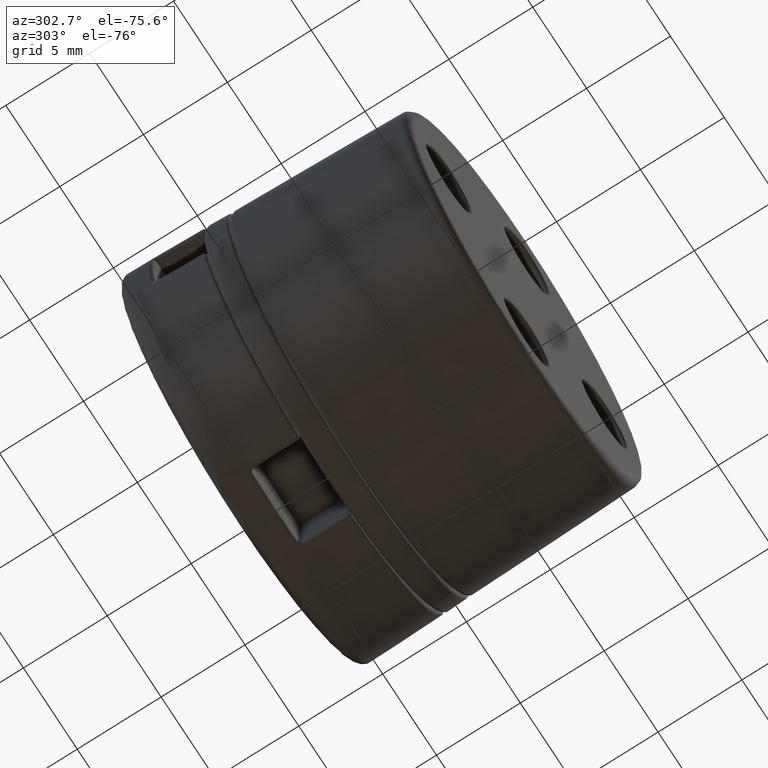
[diagram: clean part render]
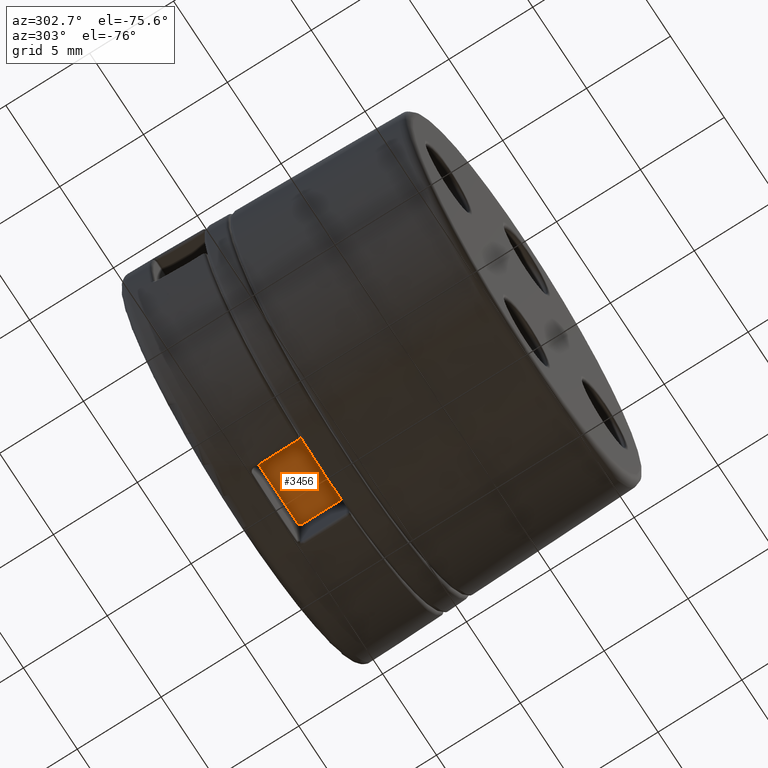
[diagram: same view with one face highlighted and labeled with its STEP entity id]
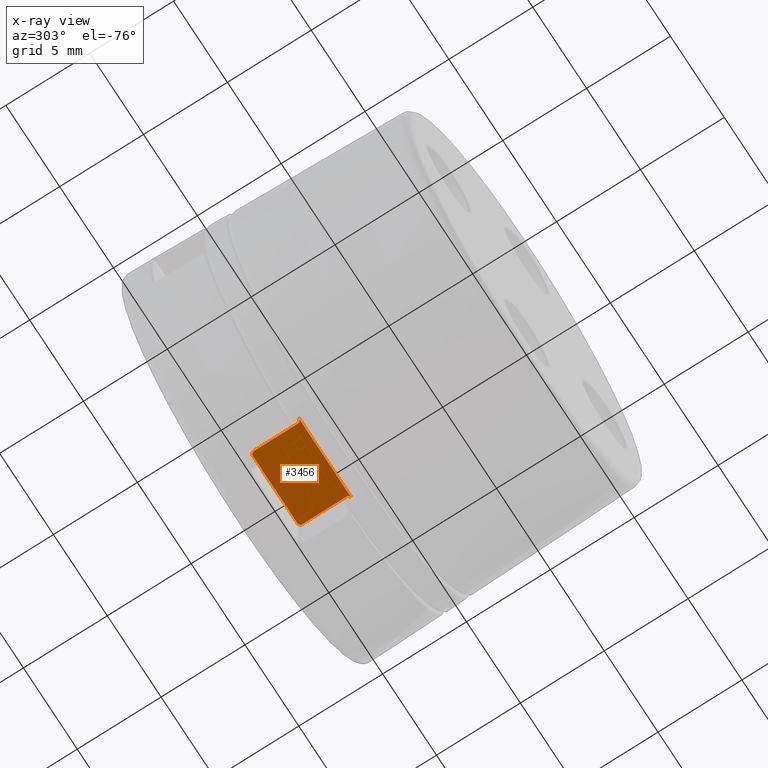
[diagram: x-ray of the same camera — body ghosted, the highlighted face saturated]
A machine part, auxiliary view. The second image highlights one B-rep face of the part: STEP entity #3456.
The next image is the same camera in x-ray: the body ghosted, the highlighted face saturated — about 0% of this face is hidden behind the body in this view.
In plain terms, the highlighted planar face has unit normal (0, -0, 1).
Its self-contained STEP definition (entity closure, byte-faithful):
#173 = VERTEX_POINT ( 'NONE', #2952 ) ;
#181 = VERTEX_POINT ( 'NONE', #2966 ) ;
#190 = VERTEX_POINT ( 'NONE', #2550 ) ;
#201 = VERTEX_POINT ( 'NONE', #2559 ) ;
#204 = VERTEX_POINT ( 'NONE', #2519 ) ;
#205 = VERTEX_POINT ( 'NONE', #2557 ) ;
#598 = CARTESIAN_POINT ( 'NONE',  ( 2.249999999999946300, 14.80000000000000200, -7.611458908937312800 ) ) ;
#747 = CARTESIAN_POINT ( 'NONE',  ( -2.250000000000053700, 12.20000000000000500, -7.611458908937281700 ) ) ;
#1163 = DIRECTION ( 'NONE',  ( 1.000000000000000000, 0.0000000000000000000, -6.938893903907230000E-015 ) ) ;
#1180 = DIRECTION ( 'NONE',  ( 6.938893903907230000E-015, -0.0000000000000000000, 1.000000000000000000 ) ) ;
#1187 = PLANE ( 'NONE',  #1578 ) ;
#1191 = FACE_OUTER_BOUND ( 'NONE', #4268, .T. ) ;
#1215 = CARTESIAN_POINT ( 'NONE',  ( -5.315053348385177900E-014, 15.00000000000000400, -7.611458908937297700 ) ) ;
#1399 = LINE ( 'NONE', #1400, #2095 ) ;
#1400 = CARTESIAN_POINT ( 'NONE',  ( -5.315053348385177900E-014, 15.00000000000000400, -7.611458908937297700 ) ) ;
#1412 = DIRECTION ( 'NONE',  ( -1.000000000000000000, 0.0000000000000000000, 6.938893903907227600E-015 ) ) ;
#1578 = AXIS2_PLACEMENT_3D ( 'NONE', #1215, #1180, #1163 ) ;
#1636 = DIRECTION ( 'NONE',  ( -6.938893903907230000E-015, 0.0000000000000000000, -1.000000000000000000 ) ) ;
#1637 = CARTESIAN_POINT ( 'NONE',  ( -2.250000000000053700, 15.00000000000000400, -7.611458908937281700 ) ) ;
#1639 = LINE ( 'NONE', #1637, #2063 ) ;
#1640 = DIRECTION ( 'NONE',  ( 1.000000000000000000, 0.0000000000000000000, -8.673617379884030700E-015 ) ) ;
#1641 = DIRECTION ( 'NONE',  ( -0.0000000000000000000, -1.000000000000000000, -0.0000000000000000000 ) ) ;
#1642 = CARTESIAN_POINT ( 'NONE',  ( 2.049999999999946500, 14.80000000000000200, -7.611458908937311000 ) ) ;
#1652 = CARTESIAN_POINT ( 'NONE',  ( 2.249999999999946300, 15.00000000000000400, -7.611458908937312800 ) ) ;
#1693 = DIRECTION ( 'NONE',  ( -0.0000000000000000000, -1.000000000000000000, -0.0000000000000000000 ) ) ;
#1735 = LINE ( 'NONE', #1652, #2018 ) ;
#1847 = VECTOR ( 'NONE', #2012, 1000.000000000000000 ) ;
#1955 = CIRCLE ( 'NONE', #1968, 0.2000000000000000900 ) ;
#1968 = AXIS2_PLACEMENT_3D ( 'NONE', #2456, #2491, #2500 ) ;
#1982 = AXIS2_PLACEMENT_3D ( 'NONE', #1642, #1636, #1640 ) ;
#1986 = AXIS2_PLACEMENT_3D ( 'NONE', #3883, #3330, #3339 ) ;
#1995 = CIRCLE ( 'NONE', #2034, 0.2000000000000000900 ) ;
#2010 = CIRCLE ( 'NONE', #1982, 0.2000000000000000900 ) ;
#2012 = DIRECTION ( 'NONE',  ( -1.000000000000000000, -0.0000000000000000000, 6.938893903907230000E-015 ) ) ;
#2018 = VECTOR ( 'NONE', #1693, 1000.000000000000000 ) ;
#2020 = LINE ( 'NONE', #2051, #1847 ) ;
#2021 = CIRCLE ( 'NONE', #1986, 0.2000000000000000900 ) ;
#2034 = AXIS2_PLACEMENT_3D ( 'NONE', #2462, #2472, #2459 ) ;
#2051 = CARTESIAN_POINT ( 'NONE',  ( -5.315053348385177900E-014, 12.00000000000000400, -7.611458908937297700 ) ) ;
#2063 = VECTOR ( 'NONE', #1641, 1000.000000000000000 ) ;
#2095 = VECTOR ( 'NONE', #1412, 1000.000000000000000 ) ;
#2456 = CARTESIAN_POINT ( 'NONE',  ( -2.450000000000053900, 12.20000000000000500, -7.611458908937279900 ) ) ;
#2459 = DIRECTION ( 'NONE',  ( 1.000000000000000000, 0.0000000000000000000, -8.673617379884030700E-015 ) ) ;
#2462 = CARTESIAN_POINT ( 'NONE',  ( 2.449999999999946000, 12.20000000000000500, -7.611458908937314600 ) ) ;
#2472 = DIRECTION ( 'NONE',  ( 6.938893903907230000E-015, -0.0000000000000000000, 1.000000000000000000 ) ) ;
#2491 = DIRECTION ( 'NONE',  ( 6.938893903907230000E-015, -0.0000000000000000000, 1.000000000000000000 ) ) ;
#2500 = DIRECTION ( 'NONE',  ( 1.000000000000000000, 0.0000000000000000000, -8.673617379884030700E-015 ) ) ;
#2519 = CARTESIAN_POINT ( 'NONE',  ( 2.249999999999946300, 12.20000000000000500, -7.611458908937312800 ) ) ;
#2550 = CARTESIAN_POINT ( 'NONE',  ( -2.250000000000053700, 14.80000000000000200, -7.611458908937281700 ) ) ;
#2557 = CARTESIAN_POINT ( 'NONE',  ( -2.050000000000053600, 15.00000000000000400, -7.611458908937283500 ) ) ;
#2559 = CARTESIAN_POINT ( 'NONE',  ( 2.049999999999946500, 15.00000000000000400, -7.611458908937311000 ) ) ;
#2952 = CARTESIAN_POINT ( 'NONE',  ( -2.450000000000053900, 12.00000000000000400, -7.611458908937279900 ) ) ;
#2966 = CARTESIAN_POINT ( 'NONE',  ( 2.449999999999946000, 12.00000000000000400, -7.611458908937314600 ) ) ;
#3099 = EDGE_CURVE ( 'NONE', #181, #173, #2020, .T. ) ;
#3175 = EDGE_CURVE ( 'NONE', #173, #3379, #1955, .T. ) ;
#3178 = EDGE_CURVE ( 'NONE', #204, #181, #1995, .T. ) ;
#3192 = EDGE_CURVE ( 'NONE', #190, #3379, #1639, .T. ) ;
#3194 = EDGE_CURVE ( 'NONE', #3325, #204, #1735, .T. ) ;
#3201 = EDGE_CURVE ( 'NONE', #190, #205, #2021, .T. ) ;
#3206 = EDGE_CURVE ( 'NONE', #201, #3325, #2010, .T. ) ;
#3224 = EDGE_CURVE ( 'NONE', #201, #205, #1399, .T. ) ;
#3325 = VERTEX_POINT ( 'NONE', #598 ) ;
#3330 = DIRECTION ( 'NONE',  ( -6.938893903907230000E-015, 0.0000000000000000000, -1.000000000000000000 ) ) ;
#3339 = DIRECTION ( 'NONE',  ( 1.000000000000000000, 0.0000000000000000000, -8.673617379884030700E-015 ) ) ;
#3379 = VERTEX_POINT ( 'NONE', #747 ) ;
#3456 = ADVANCED_FACE ( 'NONE', ( #1191 ), #1187, .F. ) ;
#3555 = ORIENTED_EDGE ( 'NONE', *, *, #3201, .T. ) ;
#3583 = ORIENTED_EDGE ( 'NONE', *, *, #3175, .T. ) ;
#3591 = ORIENTED_EDGE ( 'NONE', *, *, #3206, .T. ) ;
#3807 = ORIENTED_EDGE ( 'NONE', *, *, #3224, .F. ) ;
#3833 = ORIENTED_EDGE ( 'NONE', *, *, #3099, .T. ) ;
#3851 = ORIENTED_EDGE ( 'NONE', *, *, #3192, .F. ) ;
#3857 = ORIENTED_EDGE ( 'NONE', *, *, #3194, .T. ) ;
#3866 = ORIENTED_EDGE ( 'NONE', *, *, #3178, .T. ) ;
#3883 = CARTESIAN_POINT ( 'NONE',  ( -2.050000000000053600, 14.80000000000000200, -7.611458908937283500 ) ) ;
#4268 = EDGE_LOOP ( 'NONE', ( #3851, #3555, #3807, #3591, #3857, #3866, #3833, #3583 ) ) ;